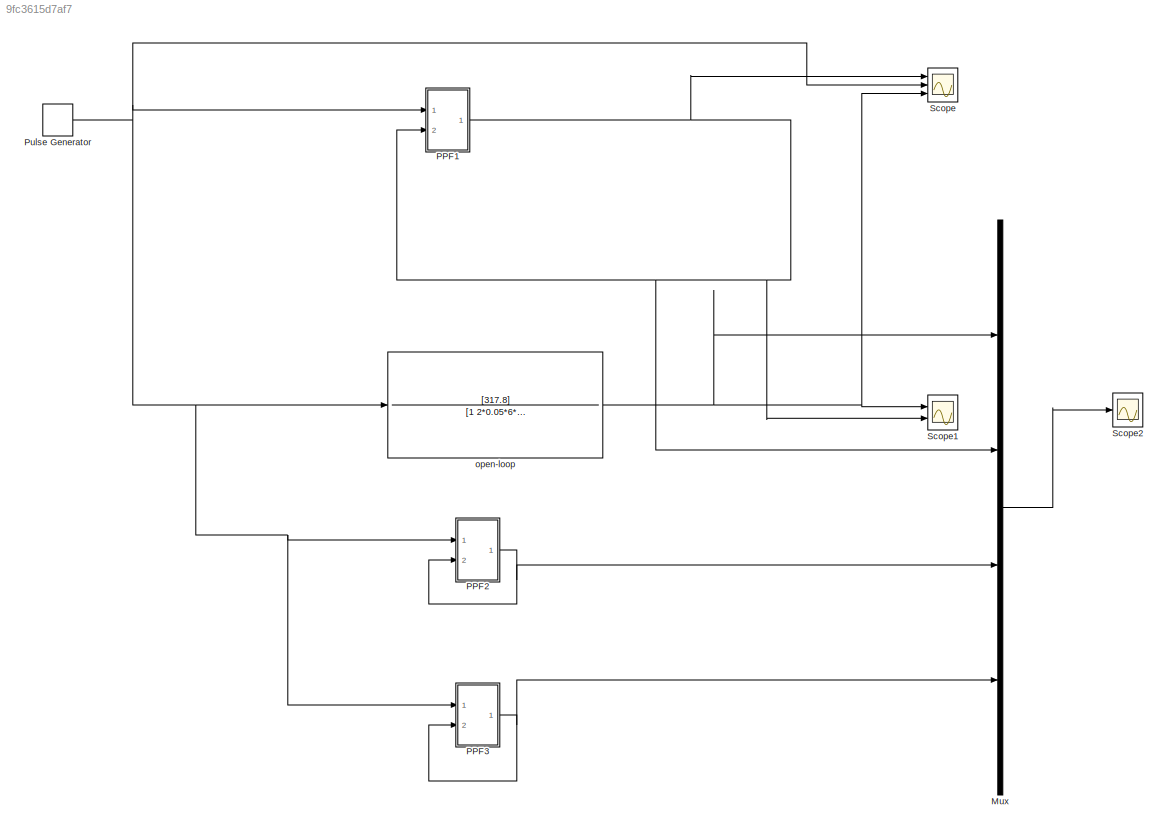
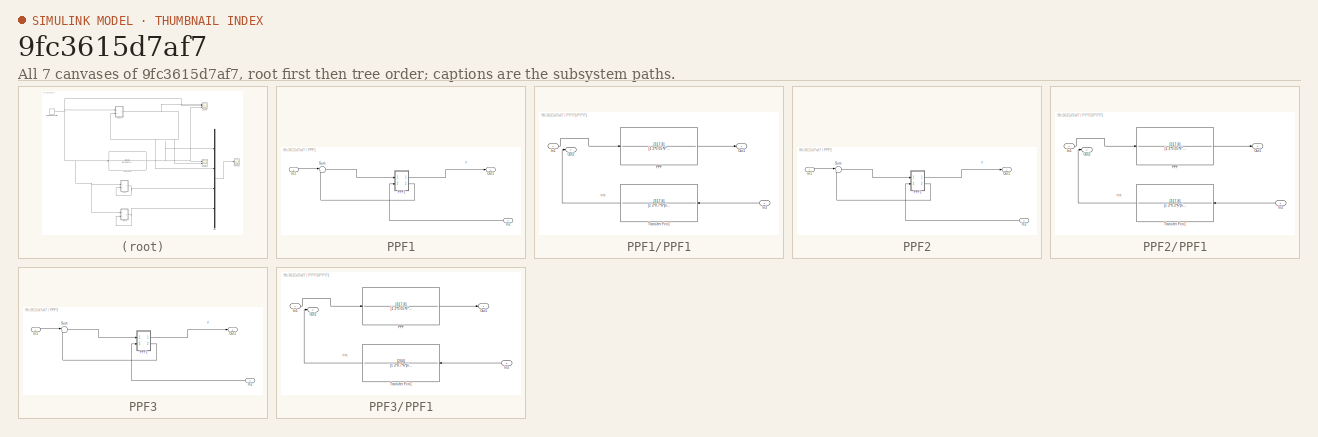
[diagram: thumbnail index - all 7 canvases of the model, root first then tree order]
MODEL slx_9fc3615d7af7
KIND model
CONFIG AbsTol = auto
CONFIG EnableMultiTasking = off
CONFIG FixedStep = auto
CONFIG MaxStep = auto
CONFIG MinStep = auto
CONFIG RelTol = 1e-3
CONFIG SampleTimeConstraint = Unconstrained
CONFIG SolverName = VariableStepAuto
CONFIG StartTime = 0.0
CONFIG StopTime = 10
BLOCK [Mux] Mux
  DisplayOption = bar
  Ports = [4, 1]
BLOCK [SubSystem] PPF1
  Ports = [2, 1]
  RequestExecContextInheritance = off
BLOCK [Inport] PPF1/In1
BLOCK [Inport] PPF1/In2
  Port = 2
BLOCK [Outport] PPF1/Out1
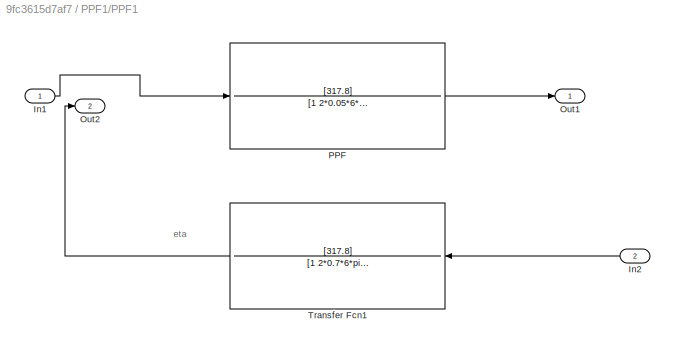
BLOCK [SubSystem] PPF1/PPF1
  Ports = [2, 2]
  RequestExecContextInheritance = off
BLOCK [Inport] PPF1/PPF1/In1
BLOCK [Inport] PPF1/PPF1/In2
  Port = 2
BLOCK [Outport] PPF1/PPF1/Out1
BLOCK [Outport] PPF1/PPF1/Out2
  Port = 2
BLOCK [TransferFcn] PPF1/PPF1/PPF
  Denominator = [1  2*0.05*6*pi (6*pi)^2]
  Numerator = [317.8]
BLOCK [TransferFcn] PPF1/PPF1/Transfer Fcn1
  Denominator = [1 2*0.7*6*pi (6*pi)^2]
  NameLocation = top
  Numerator = [317.8]
BLOCK [Sum] PPF1/Sum
  Inputs = |++
  Ports = [2, 1]
BLOCK [SubSystem] PPF2
  Ports = [2, 1]
  RequestExecContextInheritance = off
BLOCK [Inport] PPF2/In1
BLOCK [Inport] PPF2/In2
  Port = 2
BLOCK [Outport] PPF2/Out1
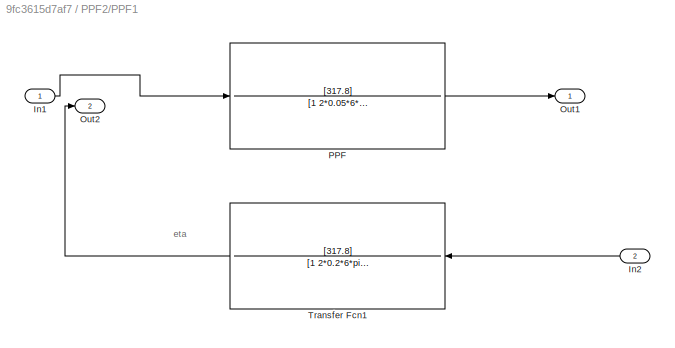
BLOCK [SubSystem] PPF2/PPF1
  Ports = [2, 2]
  RequestExecContextInheritance = off
BLOCK [Inport] PPF2/PPF1/In1
BLOCK [Inport] PPF2/PPF1/In2
  Port = 2
BLOCK [Outport] PPF2/PPF1/Out1
BLOCK [Outport] PPF2/PPF1/Out2
  Port = 2
BLOCK [TransferFcn] PPF2/PPF1/PPF
  Denominator = [1  2*0.05*6*pi (6*pi)^2]
  Numerator = [317.8]
BLOCK [TransferFcn] PPF2/PPF1/Transfer Fcn1
  Denominator = [1 2*0.2*6*pi (6*pi)^2]
  NameLocation = top
  Numerator = [317.8]
BLOCK [Sum] PPF2/Sum
  Inputs = |++
  Ports = [2, 1]
BLOCK [SubSystem] PPF3
  Ports = [2, 1]
  RequestExecContextInheritance = off
BLOCK [Inport] PPF3/In1
BLOCK [Inport] PPF3/In2
  Port = 2
BLOCK [Outport] PPF3/Out1
BLOCK [SubSystem] PPF3/PPF1
  Ports = [2, 2]
  RequestExecContextInheritance = off
BLOCK [Inport] PPF3/PPF1/In1
BLOCK [Inport] PPF3/PPF1/In2
  Port = 2
BLOCK [Outport] PPF3/PPF1/Out1
BLOCK [Outport] PPF3/PPF1/Out2
  Port = 2
BLOCK [TransferFcn] PPF3/PPF1/PPF
  Denominator = [1  2*0.05*6*pi (6*pi)^2]
  Numerator = [317.8]
BLOCK [TransferFcn] PPF3/PPF1/Transfer Fcn1
  Denominator = [1 2*0.7*6*pi (6*pi)^2]
  NameLocation = top
  Numerator = [200]
BLOCK [Sum] PPF3/Sum
  Inputs = |++
  Ports = [2, 1]
BLOCK [DiscretePulseGenerator] Pulse Generator
  Period = 20
  Ports = [0, 1]
  PulseType = Time based
  PulseWidth = 0.1
BLOCK [Scope] Scope
  Floating = off
  NumInputPorts = 3
  Ports = [3]
  ScopeSpecificationString = Simulink.scopes.TimeScopeBlockCfg('CurrentConfiguration', extmgr.ConfigurationSet(extmgr.Configuration('Core','General UI',true),extmgr.Configuration('Core','Source UI',true),extmgr.Configuration('Sources','WiredSimulink',true),extmgr.Configuration('Visuals','Time Domain',true,'SerializedDisplays',{struct('MinYLimReal','-923845579556.77271','MaxYLimReal','1364222860116.69507','YLabelReal','','MinY...<+1501ch>
BLOCK [Scope] Scope1
  Floating = off
  NumInputPorts = 2
  Ports = [2]
  ScopeSpecificationString = Simulink.scopes.TimeScopeBlockCfg('CurrentConfiguration', extmgr.ConfigurationSet(extmgr.Configuration('Core','General UI',true),extmgr.Configuration('Core','Source UI',true),extmgr.Configuration('Sources','WiredSimulink',true,'DataLoggingVariableName','ScopeData1'),extmgr.Configuration('Visuals','Time Domain',true,'SerializedDisplays',{struct('MinYLimReal','-0.32299','MaxYLimReal','0.39537','YLab...<+1414ch>
BLOCK [Scope] Scope2
  Floating = off
  NumInputPorts = 1
  Ports = [1]
  ScopeSpecificationString = Simulink.scopes.TimeScopeBlockCfg('CurrentConfiguration', extmgr.ConfigurationSet(extmgr.Configuration('Core','General UI',true,'FigureColor',[0 0 0]),extmgr.Configuration('Core','Source UI',true),extmgr.Configuration('Sources','WiredSimulink',true,'DataLoggingVariableName','ScopeData2'),extmgr.Configuration('Visuals','Time Domain',true,'SerializedDisplays',{struct('MinYLimReal','-0.32345','MaxYLi...<+1666ch>
BLOCK [TransferFcn] open-loop
  Denominator = [1  2*0.05*6*pi (6*pi)^2]
  Numerator = [317.8]
ANNOTATION PPF1: y
ANNOTATION PPF1/PPF1: eta
ANNOTATION PPF2: y
ANNOTATION PPF2/PPF1: eta
ANNOTATION PPF3: y
ANNOTATION PPF3/PPF1: eta
LINE Mux:1 -> Scope2:1
LINE PPF1/In1:1 -> PPF1/Sum:1
LINE PPF1/In2:1 -> PPF1/PPF1:2
LINE PPF1/PPF1/In1:1 -> PPF1/PPF1/PPF:1
LINE PPF1/PPF1/In2:1 -> PPF1/PPF1/Transfer Fcn1:1
LINE PPF1/PPF1/PPF:1 -> PPF1/PPF1/Out1:1
LINE PPF1/PPF1/Transfer Fcn1:1 -> PPF1/PPF1/Out2:1
LINE PPF1/PPF1:1 -> PPF1/Out1:1
LINE PPF1/PPF1:2 -> PPF1/Sum:2
LINE PPF1/Sum:1 -> PPF1/PPF1:1
NET PPF1:1 -> Mux:2, PPF1:2, Scope1:2, Scope:1
LINE PPF2/In1:1 -> PPF2/Sum:1
LINE PPF2/In2:1 -> PPF2/PPF1:2
LINE PPF2/PPF1/In1:1 -> PPF2/PPF1/PPF:1
LINE PPF2/PPF1/In2:1 -> PPF2/PPF1/Transfer Fcn1:1
LINE PPF2/PPF1/PPF:1 -> PPF2/PPF1/Out1:1
LINE PPF2/PPF1/Transfer Fcn1:1 -> PPF2/PPF1/Out2:1
LINE PPF2/PPF1:1 -> PPF2/Out1:1
LINE PPF2/PPF1:2 -> PPF2/Sum:2
LINE PPF2/Sum:1 -> PPF2/PPF1:1
NET PPF2:1 -> Mux:3, PPF2:2
LINE PPF3/In1:1 -> PPF3/Sum:1
LINE PPF3/In2:1 -> PPF3/PPF1:2
LINE PPF3/PPF1/In1:1 -> PPF3/PPF1/PPF:1
LINE PPF3/PPF1/In2:1 -> PPF3/PPF1/Transfer Fcn1:1
LINE PPF3/PPF1/PPF:1 -> PPF3/PPF1/Out1:1
LINE PPF3/PPF1/Transfer Fcn1:1 -> PPF3/PPF1/Out2:1
LINE PPF3/PPF1:1 -> PPF3/Out1:1
LINE PPF3/PPF1:2 -> PPF3/Sum:2
LINE PPF3/Sum:1 -> PPF3/PPF1:1
NET PPF3:1 -> Mux:4, PPF3:2
NET Pulse Generator:1 -> PPF1:1, PPF2:1, PPF3:1, Scope:2, open-loop:1
NET open-loop:1 -> Mux:1, Scope1:1, Scope:3
note: NET lines group one-source signal fan-out (src -> all destinations, sorted); 1:1 wires keep LINE
